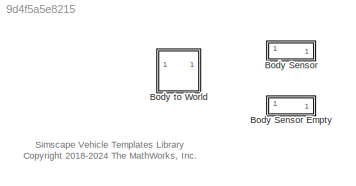
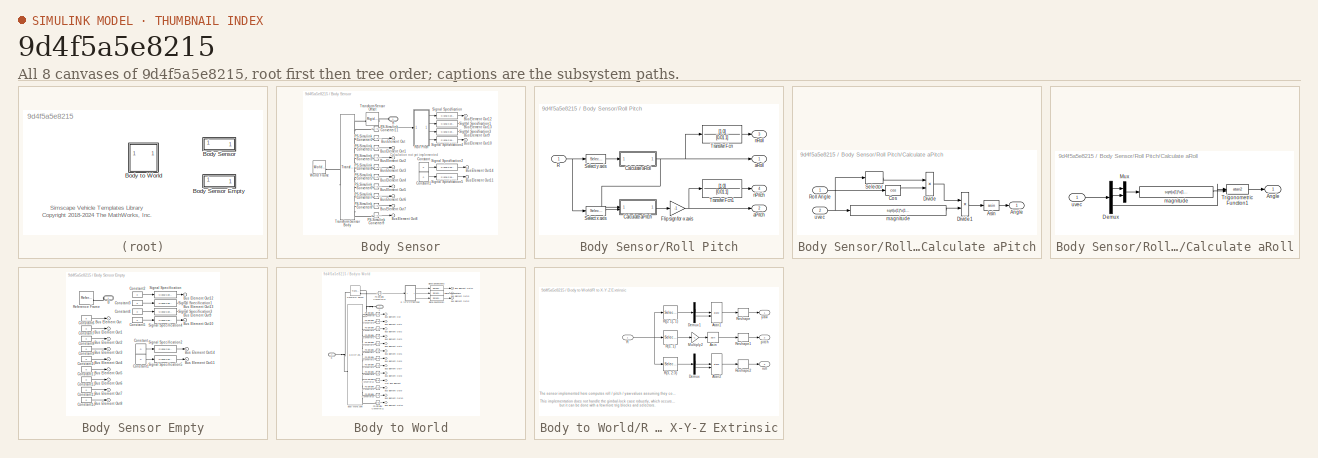
[diagram: thumbnail index - all 8 canvases of the model, root first then tree order]
MODEL slx_9d4f5a5e8215
KIND library
CONFIG AbsTol = auto
CONFIG EnableMultiTasking = off
CONFIG FixedStep = auto
CONFIG MaxStep = auto
CONFIG MinStep = auto
CONFIG RelTol = 1e-3
CONFIG SampleTimeConstraint = Unconstrained
CONFIG SolverName = VariableStepAuto
CONFIG StartTime = 0.0
CONFIG StopTime = 10.0
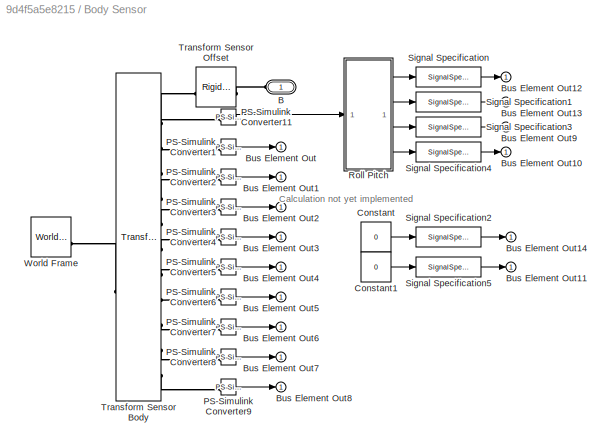
BLOCK [SubSystem] Body Sensor
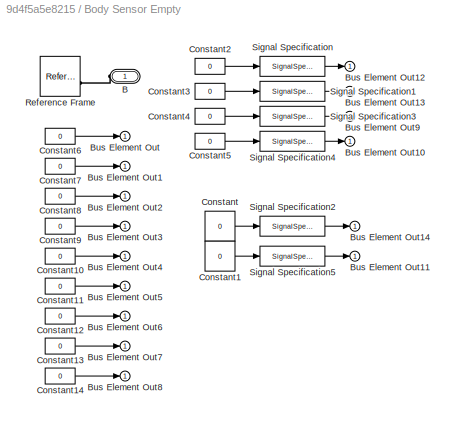
BLOCK [SubSystem] Body Sensor Empty
BLOCK [PMIOPort] Body Sensor Empty/B
  NameLocation = top
  Side = Left
BLOCK [Outport] Body Sensor Empty/Bus Element Out
  VectorParamsAs1DForOutWhenUnconnected = off
BLOCK [Outport] Body Sensor Empty/Bus Element Out1
  VectorParamsAs1DForOutWhenUnconnected = off
BLOCK [Outport] Body Sensor Empty/Bus Element Out10
  VectorParamsAs1DForOutWhenUnconnected = off
BLOCK [Outport] Body Sensor Empty/Bus Element Out11
  VectorParamsAs1DForOutWhenUnconnected = off
BLOCK [Outport] Body Sensor Empty/Bus Element Out12
  VectorParamsAs1DForOutWhenUnconnected = off
BLOCK [Outport] Body Sensor Empty/Bus Element Out13
  VectorParamsAs1DForOutWhenUnconnected = off
BLOCK [Outport] Body Sensor Empty/Bus Element Out14
  VectorParamsAs1DForOutWhenUnconnected = off
BLOCK [Outport] Body Sensor Empty/Bus Element Out2
  VectorParamsAs1DForOutWhenUnconnected = off
BLOCK [Outport] Body Sensor Empty/Bus Element Out3
  VectorParamsAs1DForOutWhenUnconnected = off
BLOCK [Outport] Body Sensor Empty/Bus Element Out4
  VectorParamsAs1DForOutWhenUnconnected = off
BLOCK [Outport] Body Sensor Empty/Bus Element Out5
  VectorParamsAs1DForOutWhenUnconnected = off
BLOCK [Outport] Body Sensor Empty/Bus Element Out6
  VectorParamsAs1DForOutWhenUnconnected = off
BLOCK [Outport] Body Sensor Empty/Bus Element Out7
  VectorParamsAs1DForOutWhenUnconnected = off
BLOCK [Outport] Body Sensor Empty/Bus Element Out8
  VectorParamsAs1DForOutWhenUnconnected = off
BLOCK [Outport] Body Sensor Empty/Bus Element Out9
  VectorParamsAs1DForOutWhenUnconnected = off
BLOCK [Constant] Body Sensor Empty/Constant
  Value = 0
BLOCK [Constant] Body Sensor Empty/Constant1
  Value = 0
BLOCK [Constant] Body Sensor Empty/Constant10
  Value = 0
BLOCK [Constant] Body Sensor Empty/Constant11
  Value = 0
BLOCK [Constant] Body Sensor Empty/Constant12
  Value = 0
BLOCK [Constant] Body Sensor Empty/Constant13
  Value = 0
BLOCK [Constant] Body Sensor Empty/Constant14
  Value = 0
BLOCK [Constant] Body Sensor Empty/Constant2
  Value = 0
BLOCK [Constant] Body Sensor Empty/Constant3
  Value = 0
BLOCK [Constant] Body Sensor Empty/Constant4
  Value = 0
BLOCK [Constant] Body Sensor Empty/Constant5
  Value = 0
BLOCK [Constant] Body Sensor Empty/Constant6
  Value = 0
BLOCK [Constant] Body Sensor Empty/Constant7
  Value = 0
BLOCK [Constant] Body Sensor Empty/Constant8
  Value = 0
BLOCK [Constant] Body Sensor Empty/Constant9
  Value = 0
BLOCK [Reference] Body Sensor Empty/Reference Frame  REF=sm_lib/Frames and
Transforms/Reference
Frame
  SourceBlock = sm_lib/Frames and\nTransforms/Reference\nFrame
  SourceType = Reference\nFrame
BLOCK [SignalSpecification] Body Sensor Empty/Signal Specification
  Unit = rad
BLOCK [SignalSpecification] Body Sensor Empty/Signal Specification1
  Unit = rad
BLOCK [SignalSpecification] Body Sensor Empty/Signal Specification2
  Unit = rad
BLOCK [SignalSpecification] Body Sensor Empty/Signal Specification3
  Unit = rad/s
BLOCK [SignalSpecification] Body Sensor Empty/Signal Specification4
  Unit = rad/s
BLOCK [SignalSpecification] Body Sensor Empty/Signal Specification5
  Unit = rad/s
BLOCK [PMIOPort] Body Sensor/B
  NameLocation = top
  Side = Left
BLOCK [Outport] Body Sensor/Bus Element Out
  VectorParamsAs1DForOutWhenUnconnected = off
BLOCK [Outport] Body Sensor/Bus Element Out1
  VectorParamsAs1DForOutWhenUnconnected = off
BLOCK [Outport] Body Sensor/Bus Element Out10
  VectorParamsAs1DForOutWhenUnconnected = off
BLOCK [Outport] Body Sensor/Bus Element Out11
  VectorParamsAs1DForOutWhenUnconnected = off
BLOCK [Outport] Body Sensor/Bus Element Out12
  VectorParamsAs1DForOutWhenUnconnected = off
BLOCK [Outport] Body Sensor/Bus Element Out13
  VectorParamsAs1DForOutWhenUnconnected = off
BLOCK [Outport] Body Sensor/Bus Element Out14
  VectorParamsAs1DForOutWhenUnconnected = off
BLOCK [Outport] Body Sensor/Bus Element Out2
  VectorParamsAs1DForOutWhenUnconnected = off
BLOCK [Outport] Body Sensor/Bus Element Out3
  VectorParamsAs1DForOutWhenUnconnected = off
BLOCK [Outport] Body Sensor/Bus Element Out4
  VectorParamsAs1DForOutWhenUnconnected = off
BLOCK [Outport] Body Sensor/Bus Element Out5
  VectorParamsAs1DForOutWhenUnconnected = off
BLOCK [Outport] Body Sensor/Bus Element Out6
  VectorParamsAs1DForOutWhenUnconnected = off
BLOCK [Outport] Body Sensor/Bus Element Out7
  VectorParamsAs1DForOutWhenUnconnected = off
BLOCK [Outport] Body Sensor/Bus Element Out8
  VectorParamsAs1DForOutWhenUnconnected = off
BLOCK [Outport] Body Sensor/Bus Element Out9
  VectorParamsAs1DForOutWhenUnconnected = off
BLOCK [Constant] Body Sensor/Constant
  Value = 0
BLOCK [Constant] Body Sensor/Constant1
  Value = 0
BLOCK [Reference] Body Sensor/PS-Simulink Converter1  REF=nesl_utility/PS-Simulink
Converter
  SourceBlock = nesl_utility/PS-Simulink\nConverter
  SourceType = PS-Simulink\nConverter
BLOCK [Reference] Body Sensor/PS-Simulink Converter11  REF=nesl_utility/PS-Simulink
Converter
  SourceBlock = nesl_utility/PS-Simulink\nConverter
  SourceType = PS-Simulink\nConverter
BLOCK [Reference] Body Sensor/PS-Simulink Converter2  REF=nesl_utility/PS-Simulink
Converter
  SourceBlock = nesl_utility/PS-Simulink\nConverter
  SourceType = PS-Simulink\nConverter
BLOCK [Reference] Body Sensor/PS-Simulink Converter3  REF=nesl_utility/PS-Simulink
Converter
  SourceBlock = nesl_utility/PS-Simulink\nConverter
  SourceType = PS-Simulink\nConverter
BLOCK [Reference] Body Sensor/PS-Simulink Converter4  REF=nesl_utility/PS-Simulink
Converter
  SourceBlock = nesl_utility/PS-Simulink\nConverter
  SourceType = PS-Simulink\nConverter
BLOCK [Reference] Body Sensor/PS-Simulink Converter5  REF=nesl_utility/PS-Simulink
Converter
  SourceBlock = nesl_utility/PS-Simulink\nConverter
  SourceType = PS-Simulink\nConverter
BLOCK [Reference] Body Sensor/PS-Simulink Converter6  REF=nesl_utility/PS-Simulink
Converter
  SourceBlock = nesl_utility/PS-Simulink\nConverter
  SourceType = PS-Simulink\nConverter
BLOCK [Reference] Body Sensor/PS-Simulink Converter7  REF=nesl_utility/PS-Simulink
Converter
  SourceBlock = nesl_utility/PS-Simulink\nConverter
  SourceType = PS-Simulink\nConverter
BLOCK [Reference] Body Sensor/PS-Simulink Converter8  REF=nesl_utility/PS-Simulink
Converter
  SourceBlock = nesl_utility/PS-Simulink\nConverter
  SourceType = PS-Simulink\nConverter
BLOCK [Reference] Body Sensor/PS-Simulink Converter9  REF=nesl_utility/PS-Simulink
Converter
  SourceBlock = nesl_utility/PS-Simulink\nConverter
  SourceType = PS-Simulink\nConverter
BLOCK [SubSystem] Body Sensor/Roll Pitch
BLOCK [SubSystem] Body Sensor/Roll Pitch/Calculate aPitch
BLOCK [Outport] Body Sensor/Roll Pitch/Calculate aPitch/Angle
  VectorParamsAs1DForOutWhenUnconnected = off
BLOCK [Trigonometry] Body Sensor/Roll Pitch/Calculate aPitch/Asin
  Operator = asin
BLOCK [Trigonometry] Body Sensor/Roll Pitch/Calculate aPitch/Cos
  Operator = cos
BLOCK [Product] Body Sensor/Roll Pitch/Calculate aPitch/Divide
  Inputs = */
BLOCK [Product] Body Sensor/Roll Pitch/Calculate aPitch/Divide1
  Inputs = */
BLOCK [Inport] Body Sensor/Roll Pitch/Calculate aPitch/Roll Angle
BLOCK [Selector] Body Sensor/Roll Pitch/Calculate aPitch/Selector
  IndexOptions = Index vector (dialog)
  Indices = [3]
  InputPortWidth = 3
  NameLocation = top
  OutputSizes = 1
BLOCK [Fcn] Body Sensor/Roll Pitch/Calculate aPitch/magnitude
  Expr = sqrt(u(1)*u(1)+u(2)*u(2)+u(3)*u(3))
BLOCK [Inport] Body Sensor/Roll Pitch/Calculate aPitch/uvec
  Port = 2
BLOCK [SubSystem] Body Sensor/Roll Pitch/Calculate aRoll
BLOCK [Outport] Body Sensor/Roll Pitch/Calculate aRoll/Angle
  VectorParamsAs1DForOutWhenUnconnected = off
BLOCK [Demux] Body Sensor/Roll Pitch/Calculate aRoll/Demux
  Outputs = 3
BLOCK [Mux] Body Sensor/Roll Pitch/Calculate aRoll/Mux
  DisplayOption = bar
  Inputs = 2
BLOCK [Trigonometry] Body Sensor/Roll Pitch/Calculate aRoll/Trigonometric Function1
  Operator = atan2
BLOCK [Fcn] Body Sensor/Roll Pitch/Calculate aRoll/magnitude
  Expr = sqrt(u(1)*u(1)+u(2)*u(2))
BLOCK [Inport] Body Sensor/Roll Pitch/Calculate aRoll/uvec
BLOCK [Gain] Body Sensor/Roll Pitch/Flip sign for -x axis 
  Gain = -1
BLOCK [Inport] Body Sensor/Roll Pitch/R
BLOCK [Selector] Body Sensor/Roll Pitch/Select x axis
  IndexOptions = Index vector (dialog),Index vector (dialog)
  Indices = [1 2 3],1
  InputPortWidth = 2
  NumberOfDimensions = 2
  OutputSizes = 1,1
BLOCK [Selector] Body Sensor/Roll Pitch/Select y axis
  IndexOptions = Index vector (dialog),Index vector (dialog)
  Indices = [1 2 3],2
  InputPortWidth = 2
  NumberOfDimensions = 2
  OutputSizes = 1,1
BLOCK [TransferFcn] Body Sensor/Roll Pitch/Transfer Fcn
  Denominator = [0.01 1]
  NameLocation = top
  Numerator = [1 0]
BLOCK [TransferFcn] Body Sensor/Roll Pitch/Transfer Fcn1
  Denominator = [0.01 1]
  NameLocation = top
  Numerator = [1 0]
BLOCK [Outport] Body Sensor/Roll Pitch/aPitch
  Port = 2
  VectorParamsAs1DForOutWhenUnconnected = off
BLOCK [Outport] Body Sensor/Roll Pitch/aRoll
  VectorParamsAs1DForOutWhenUnconnected = off
BLOCK [Outport] Body Sensor/Roll Pitch/nPitch
  Port = 4
  VectorParamsAs1DForOutWhenUnconnected = off
BLOCK [Outport] Body Sensor/Roll Pitch/nRoll
  Port = 3
  VectorParamsAs1DForOutWhenUnconnected = off
BLOCK [SignalSpecification] Body Sensor/Signal Specification
  Unit = rad
BLOCK [SignalSpecification] Body Sensor/Signal Specification1
  Unit = rad
BLOCK [SignalSpecification] Body Sensor/Signal Specification2
  Unit = rad
BLOCK [SignalSpecification] Body Sensor/Signal Specification3
  Unit = rad/s
BLOCK [SignalSpecification] Body Sensor/Signal Specification4
  Unit = rad/s
BLOCK [SignalSpecification] Body Sensor/Signal Specification5
  Unit = rad/s
BLOCK [Reference] Body Sensor/Transform Sensor Body  REF=sm_lib/Frames and
Transforms/Transform
Sensor
  AttributesFormatString = %<MeasurementFrame>
  SourceBlock = sm_lib/Frames and\nTransforms/Transform\nSensor
  SourceType = Transform\nSensor
BLOCK [Reference] Body Sensor/Transform Sensor Offset  REF=sm_lib/Frames and
Transforms/Rigid
Transform
  NameLocation = top
  SourceBlock = sm_lib/Frames and\nTransforms/Rigid\nTransform
  SourceType = Rigid\nTransform
BLOCK [Reference] Body Sensor/World Frame  REF=sm_lib/Frames and
Transforms/World Frame
  SourceBlock = sm_lib/Frames and\nTransforms/World Frame
  SourceType = World Frame
BLOCK [SubSystem] Body to World
BLOCK [PMIOPort] Body to World/B
  Port = 2
  Side = Right
BLOCK [Reference] Body to World/Body World Joint  REF=sm_lib/Joints/6-DOF Joint
  SourceBlock = sm_lib/Joints/6-DOF Joint
  SourceType = 6-DOF Joint
BLOCK [Outport] Body to World/Bus Element Out
  VectorParamsAs1DForOutWhenUnconnected = off
BLOCK [Outport] Body to World/Bus Element Out1
  VectorParamsAs1DForOutWhenUnconnected = off
BLOCK [Outport] Body to World/Bus Element Out10
  VectorParamsAs1DForOutWhenUnconnected = off
BLOCK [Outport] Body to World/Bus Element Out11
  VectorParamsAs1DForOutWhenUnconnected = off
BLOCK [Outport] Body to World/Bus Element Out12
  VectorParamsAs1DForOutWhenUnconnected = off
BLOCK [Outport] Body to World/Bus Element Out13
  VectorParamsAs1DForOutWhenUnconnected = off
BLOCK [Outport] Body to World/Bus Element Out14
  VectorParamsAs1DForOutWhenUnconnected = off
BLOCK [Outport] Body to World/Bus Element Out2
  VectorParamsAs1DForOutWhenUnconnected = off
BLOCK [Outport] Body to World/Bus Element Out3
  VectorParamsAs1DForOutWhenUnconnected = off
BLOCK [Outport] Body to World/Bus Element Out4
  VectorParamsAs1DForOutWhenUnconnected = off
BLOCK [Outport] Body to World/Bus Element Out5
  VectorParamsAs1DForOutWhenUnconnected = off
BLOCK [Outport] Body to World/Bus Element Out6
  VectorParamsAs1DForOutWhenUnconnected = off
BLOCK [Outport] Body to World/Bus Element Out7
  VectorParamsAs1DForOutWhenUnconnected = off
BLOCK [Outport] Body to World/Bus Element Out8
  VectorParamsAs1DForOutWhenUnconnected = off
BLOCK [Outport] Body to World/Bus Element Out9
  VectorParamsAs1DForOutWhenUnconnected = off
BLOCK [PMIOPort] Body to World/F
  Side = Left
BLOCK [Outport] Body to World/Out Bus Element
  VectorParamsAs1DForOutWhenUnconnected = off
BLOCK [Reference] Body to World/PS-Simulink Converter  REF=nesl_utility/PS-Simulink
Converter
  SourceBlock = nesl_utility/PS-Simulink\nConverter
  SourceType = PS-Simulink\nConverter
BLOCK [Reference] Body to World/PS-Simulink Converter1  REF=nesl_utility/PS-Simulink
Converter
  SourceBlock = nesl_utility/PS-Simulink\nConverter
  SourceType = PS-Simulink\nConverter
BLOCK [Reference] Body to World/PS-Simulink Converter10  REF=nesl_utility/PS-Simulink
Converter
  SourceBlock = nesl_utility/PS-Simulink\nConverter
  SourceType = PS-Simulink\nConverter
BLOCK [Reference] Body to World/PS-Simulink Converter11  REF=nesl_utility/PS-Simulink
Converter
  SourceBlock = nesl_utility/PS-Simulink\nConverter
  SourceType = PS-Simulink\nConverter
BLOCK [Reference] Body to World/PS-Simulink Converter12  REF=nesl_utility/PS-Simulink
Converter
  SourceBlock = nesl_utility/PS-Simulink\nConverter
  SourceType = PS-Simulink\nConverter
BLOCK [Reference] Body to World/PS-Simulink Converter13  REF=nesl_utility/PS-Simulink
Converter
  SourceBlock = nesl_utility/PS-Simulink\nConverter
  SourceType = PS-Simulink\nConverter
BLOCK [Reference] Body to World/PS-Simulink Converter2  REF=nesl_utility/PS-Simulink
Converter
  SourceBlock = nesl_utility/PS-Simulink\nConverter
  SourceType = PS-Simulink\nConverter
BLOCK [Reference] Body to World/PS-Simulink Converter3  REF=nesl_utility/PS-Simulink
Converter
  SourceBlock = nesl_utility/PS-Simulink\nConverter
  SourceType = PS-Simulink\nConverter
BLOCK [Reference] Body to World/PS-Simulink Converter4  REF=nesl_utility/PS-Simulink
Converter
  SourceBlock = nesl_utility/PS-Simulink\nConverter
  SourceType = PS-Simulink\nConverter
BLOCK [Reference] Body to World/PS-Simulink Converter5  REF=nesl_utility/PS-Simulink
Converter
  SourceBlock = nesl_utility/PS-Simulink\nConverter
  SourceType = PS-Simulink\nConverter
BLOCK [Reference] Body to World/PS-Simulink Converter6  REF=nesl_utility/PS-Simulink
Converter
  SourceBlock = nesl_utility/PS-Simulink\nConverter
  SourceType = PS-Simulink\nConverter
BLOCK [Reference] Body to World/PS-Simulink Converter7  REF=nesl_utility/PS-Simulink
Converter
  SourceBlock = nesl_utility/PS-Simulink\nConverter
  SourceType = PS-Simulink\nConverter
BLOCK [Reference] Body to World/PS-Simulink Converter8  REF=nesl_utility/PS-Simulink
Converter
  SourceBlock = nesl_utility/PS-Simulink\nConverter
  SourceType = PS-Simulink\nConverter
BLOCK [Reference] Body to World/PS-Simulink Converter9  REF=nesl_utility/PS-Simulink
Converter
  SourceBlock = nesl_utility/PS-Simulink\nConverter
  SourceType = PS-Simulink\nConverter
BLOCK [SubSystem] Body to World/R to X-Y-Z Extrinsic
BLOCK [Trigonometry] Body to World/R to X-Y-Z Extrinsic/Asin
  Operator = asin
BLOCK [Trigonometry] Body to World/R to X-Y-Z Extrinsic/Atan1
  Operator = atan2
BLOCK [Trigonometry] Body to World/R to X-Y-Z Extrinsic/Atan2
  Operator = atan2
BLOCK [Demux] Body to World/R to X-Y-Z Extrinsic/Demux
  Outputs = 2
BLOCK [Demux] Body to World/R to X-Y-Z Extrinsic/Demux1
  Outputs = 2
BLOCK [Gain] Body to World/R to X-Y-Z Extrinsic/Multiply2
  Gain = -1
BLOCK [Inport] Body to World/R to X-Y-Z Extrinsic/R
BLOCK [Selector] Body to World/R to X-Y-Z Extrinsic/R(3, 1)
  IndexOptions = Index vector (dialog),Index vector (dialog)
  Indices = 3,1
  InputPortWidth = 3
  NumberOfDimensions = 2
  OutputSizes = 1,1
BLOCK [Selector] Body to World/R to X-Y-Z Extrinsic/R(3, 2:3)
  IndexOptions = Index vector (dialog),Index vector (dialog)
  Indices = 3,[2 3]
  InputPortWidth = 3
  NumberOfDimensions = 2
  OutputSizes = 1,1
BLOCK [Selector] Body to World/R to X-Y-Z Extrinsic/R([2 1], 1)
  IndexOptions = Index vector (dialog),Index vector (dialog)
  Indices = [2 1],1
  InputPortWidth = 3
  NumberOfDimensions = 2
  OutputSizes = 1,1
BLOCK [Reshape] Body to World/R to X-Y-Z Extrinsic/Reshape
BLOCK [Reshape] Body to World/R to X-Y-Z Extrinsic/Reshape1
BLOCK [Reshape] Body to World/R to X-Y-Z Extrinsic/Reshape2
  OutputDimensionality = Customize
  OutputDimensions = 1
BLOCK [Outport] Body to World/R to X-Y-Z Extrinsic/pitch
  Port = 2
  VectorParamsAs1DForOutWhenUnconnected = off
BLOCK [Outport] Body to World/R to X-Y-Z Extrinsic/roll
  Port = 3
  VectorParamsAs1DForOutWhenUnconnected = off
BLOCK [Outport] Body to World/R to X-Y-Z Extrinsic/yaw
  VectorParamsAs1DForOutWhenUnconnected = off
BLOCK [SignalSpecification] Body to World/Signal Specification
  Unit = rad
BLOCK [SignalSpecification] Body to World/Signal Specification1
  Unit = rad
BLOCK [SignalSpecification] Body to World/Signal Specification2
  Unit = rad
BLOCK [Reference] Body to World/Transform Sensor  REF=sm_lib/Frames and
Transforms/Transform
Sensor
  SourceBlock = sm_lib/Frames and\nTransforms/Transform\nSensor
  SourceType = Transform\nSensor
ANNOTATION (root): Simscape Vehicle Templates Library <copyright redacted>
ANNOTATION Body Sensor: Calculation not yet implemented
ANNOTATION Body to World/R to X-Y-Z Extrinsic: The sensor implemented here computes roll / pitch / yaw values assuming they correpsond to X, Y, and Z rotations, applied in that order and using *extrinsic* rotations. That is, the rotations are applied about the fixed (non-rotated) axes of the base frame. There are many other possible conventions, but the computations of angles has the same basic structure for any of them. The only differences w...<+349ch>
LINE Body Sensor Empty/Constant10:1 -> Body Sensor Empty/Bus Element Out4:1
LINE Body Sensor Empty/Constant11:1 -> Body Sensor Empty/Bus Element Out5:1
LINE Body Sensor Empty/Constant12:1 -> Body Sensor Empty/Bus Element Out6:1
LINE Body Sensor Empty/Constant13:1 -> Body Sensor Empty/Bus Element Out7:1
LINE Body Sensor Empty/Constant14:1 -> Body Sensor Empty/Bus Element Out8:1
LINE Body Sensor Empty/Constant1:1 -> Body Sensor Empty/Signal Specification5:1
LINE Body Sensor Empty/Constant2:1 -> Body Sensor Empty/Signal Specification:1
LINE Body Sensor Empty/Constant3:1 -> Body Sensor Empty/Signal Specification1:1
LINE Body Sensor Empty/Constant4:1 -> Body Sensor Empty/Signal Specification3:1
LINE Body Sensor Empty/Constant5:1 -> Body Sensor Empty/Signal Specification4:1
LINE Body Sensor Empty/Constant6:1 -> Body Sensor Empty/Bus Element Out:1
LINE Body Sensor Empty/Constant7:1 -> Body Sensor Empty/Bus Element Out1:1
LINE Body Sensor Empty/Constant8:1 -> Body Sensor Empty/Bus Element Out2:1
LINE Body Sensor Empty/Constant9:1 -> Body Sensor Empty/Bus Element Out3:1
LINE Body Sensor Empty/Constant:1 -> Body Sensor Empty/Signal Specification2:1
LINE Body Sensor Empty/Signal Specification1:1 -> Body Sensor Empty/Bus Element Out13:1
LINE Body Sensor Empty/Signal Specification2:1 -> Body Sensor Empty/Bus Element Out14:1
LINE Body Sensor Empty/Signal Specification3:1 -> Body Sensor Empty/Bus Element Out9:1
LINE Body Sensor Empty/Signal Specification4:1 -> Body Sensor Empty/Bus Element Out10:1
LINE Body Sensor Empty/Signal Specification5:1 -> Body Sensor Empty/Bus Element Out11:1
LINE Body Sensor Empty/Signal Specification:1 -> Body Sensor Empty/Bus Element Out12:1
LINE Body Sensor/Constant1:1 -> Body Sensor/Signal Specification5:1
LINE Body Sensor/Constant:1 -> Body Sensor/Signal Specification2:1
LINE Body Sensor/PS-Simulink Converter11:1 -> Body Sensor/Roll Pitch:1
LINE Body Sensor/PS-Simulink Converter1:1 -> Body Sensor/Bus Element Out:1
LINE Body Sensor/PS-Simulink Converter2:1 -> Body Sensor/Bus Element Out1:1
LINE Body Sensor/PS-Simulink Converter3:1 -> Body Sensor/Bus Element Out2:1
LINE Body Sensor/PS-Simulink Converter4:1 -> Body Sensor/Bus Element Out3:1
LINE Body Sensor/PS-Simulink Converter5:1 -> Body Sensor/Bus Element Out4:1
LINE Body Sensor/PS-Simulink Converter6:1 -> Body Sensor/Bus Element Out5:1
LINE Body Sensor/PS-Simulink Converter7:1 -> Body Sensor/Bus Element Out6:1
LINE Body Sensor/PS-Simulink Converter8:1 -> Body Sensor/Bus Element Out7:1
LINE Body Sensor/PS-Simulink Converter9:1 -> Body Sensor/Bus Element Out8:1
LINE Body Sensor/Roll Pitch/Calculate aPitch/Asin:1 -> Body Sensor/Roll Pitch/Calculate aPitch/Angle:1
LINE Body Sensor/Roll Pitch/Calculate aPitch/Cos:1 -> Body Sensor/Roll Pitch/Calculate aPitch/Divide:2
LINE Body Sensor/Roll Pitch/Calculate aPitch/Divide1:1 -> Body Sensor/Roll Pitch/Calculate aPitch/Asin:1
LINE Body Sensor/Roll Pitch/Calculate aPitch/Divide:1 -> Body Sensor/Roll Pitch/Calculate aPitch/Divide1:1
LINE Body Sensor/Roll Pitch/Calculate aPitch/Roll Angle:1 -> Body Sensor/Roll Pitch/Calculate aPitch/Cos:1
LINE Body Sensor/Roll Pitch/Calculate aPitch/Selector:1 -> Body Sensor/Roll Pitch/Calculate aPitch/Divide:1
LINE Body Sensor/Roll Pitch/Calculate aPitch/magnitude:1 -> Body Sensor/Roll Pitch/Calculate aPitch/Divide1:2
NET Body Sensor/Roll Pitch/Calculate aPitch/uvec:1 -> Body Sensor/Roll Pitch/Calculate aPitch/Selector:1, Body Sensor/Roll Pitch/Calculate aPitch/magnitude:1
LINE Body Sensor/Roll Pitch/Calculate aPitch:1 -> Body Sensor/Roll Pitch/Flip sign for -x axis :1
LINE Body Sensor/Roll Pitch/Calculate aRoll/Demux:1 -> Body Sensor/Roll Pitch/Calculate aRoll/Mux:1
LINE Body Sensor/Roll Pitch/Calculate aRoll/Demux:2 -> Body Sensor/Roll Pitch/Calculate aRoll/Mux:2
LINE Body Sensor/Roll Pitch/Calculate aRoll/Demux:3 -> Body Sensor/Roll Pitch/Calculate aRoll/Trigonometric Function1:1
LINE Body Sensor/Roll Pitch/Calculate aRoll/Mux:1 -> Body Sensor/Roll Pitch/Calculate aRoll/magnitude:1
LINE Body Sensor/Roll Pitch/Calculate aRoll/Trigonometric Function1:1 -> Body Sensor/Roll Pitch/Calculate aRoll/Angle:1
LINE Body Sensor/Roll Pitch/Calculate aRoll/magnitude:1 -> Body Sensor/Roll Pitch/Calculate aRoll/Trigonometric Function1:2
LINE Body Sensor/Roll Pitch/Calculate aRoll/uvec:1 -> Body Sensor/Roll Pitch/Calculate aRoll/Demux:1
NET Body Sensor/Roll Pitch/Calculate aRoll:1 -> Body Sensor/Roll Pitch/Calculate aPitch:1, Body Sensor/Roll Pitch/Transfer Fcn:1, Body Sensor/Roll Pitch/aRoll:1
NET Body Sensor/Roll Pitch/Flip sign for -x axis :1 -> Body Sensor/Roll Pitch/Transfer Fcn1:1, Body Sensor/Roll Pitch/aPitch:1
NET Body Sensor/Roll Pitch/R:1 -> Body Sensor/Roll Pitch/Select x axis:1, Body Sensor/Roll Pitch/Select y axis:1
LINE Body Sensor/Roll Pitch/Select x axis:1 -> Body Sensor/Roll Pitch/Calculate aPitch:2
LINE Body Sensor/Roll Pitch/Select y axis:1 -> Body Sensor/Roll Pitch/Calculate aRoll:1
LINE Body Sensor/Roll Pitch/Transfer Fcn1:1 -> Body Sensor/Roll Pitch/nPitch:1
LINE Body Sensor/Roll Pitch/Transfer Fcn:1 -> Body Sensor/Roll Pitch/nRoll:1
LINE Body Sensor/Roll Pitch:1 -> Body Sensor/Signal Specification:1
LINE Body Sensor/Roll Pitch:2 -> Body Sensor/Signal Specification1:1
LINE Body Sensor/Roll Pitch:3 -> Body Sensor/Signal Specification3:1
LINE Body Sensor/Roll Pitch:4 -> Body Sensor/Signal Specification4:1
LINE Body Sensor/Signal Specification1:1 -> Body Sensor/Bus Element Out13:1
LINE Body Sensor/Signal Specification2:1 -> Body Sensor/Bus Element Out14:1
LINE Body Sensor/Signal Specification3:1 -> Body Sensor/Bus Element Out9:1
LINE Body Sensor/Signal Specification4:1 -> Body Sensor/Bus Element Out10:1
LINE Body Sensor/Signal Specification5:1 -> Body Sensor/Bus Element Out11:1
LINE Body Sensor/Signal Specification:1 -> Body Sensor/Bus Element Out12:1
PLINE Body Sensor Empty/B:RConn1 -- Body Sensor Empty/Reference Frame:RConn1
PLINE Body Sensor/B:RConn1 -- Body Sensor/Transform Sensor Offset:LConn1
PLINE Body Sensor/PS-Simulink Converter11:LConn1 -- Body Sensor/Transform Sensor Body:RConn2
PLINE Body Sensor/PS-Simulink Converter1:LConn1 -- Body Sensor/Transform Sensor Body:RConn3
PLINE Body Sensor/PS-Simulink Converter2:LConn1 -- Body Sensor/Transform Sensor Body:RConn4
PLINE Body Sensor/PS-Simulink Converter3:LConn1 -- Body Sensor/Transform Sensor Body:RConn5
PLINE Body Sensor/PS-Simulink Converter4:LConn1 -- Body Sensor/Transform Sensor Body:RConn6
PLINE Body Sensor/PS-Simulink Converter5:LConn1 -- Body Sensor/Transform Sensor Body:RConn7
PLINE Body Sensor/PS-Simulink Converter6:LConn1 -- Body Sensor/Transform Sensor Body:RConn8
PLINE Body Sensor/PS-Simulink Converter7:LConn1 -- Body Sensor/Transform Sensor Body:RConn9
PLINE Body Sensor/PS-Simulink Converter8:LConn1 -- Body Sensor/Transform Sensor Body:RConn10
PLINE Body Sensor/PS-Simulink Converter9:LConn1 -- Body Sensor/Transform Sensor Body:RConn11
PLINE Body Sensor/Transform Sensor Body:LConn1 -- Body Sensor/World Frame:RConn1
PLINE Body Sensor/Transform Sensor Body:RConn1 -- Body Sensor/Transform Sensor Offset:RConn1
note: NET lines group one-source signal fan-out (src -> all destinations, sorted); 1:1 wires keep LINE
